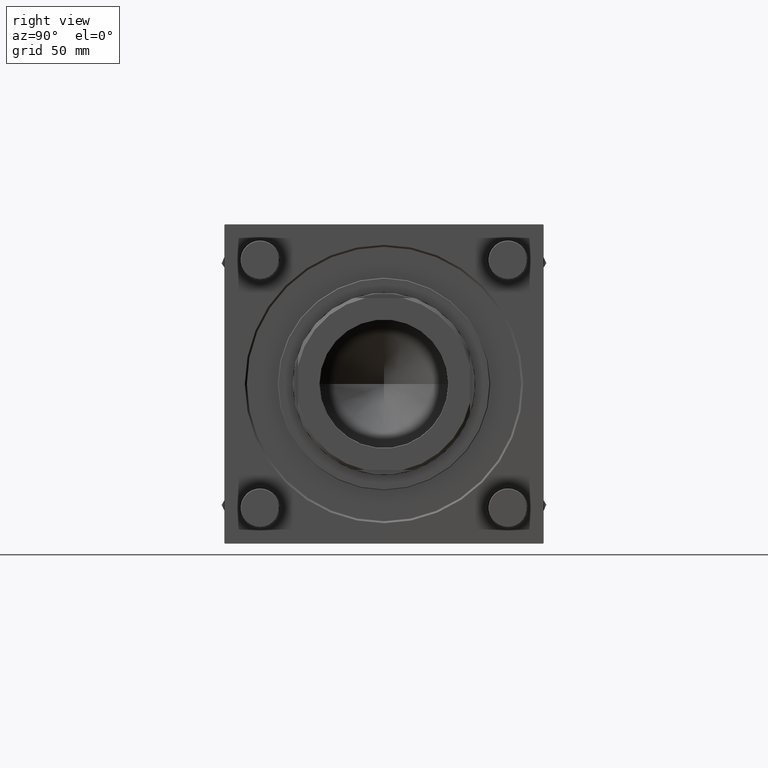
[diagram: clean part render]
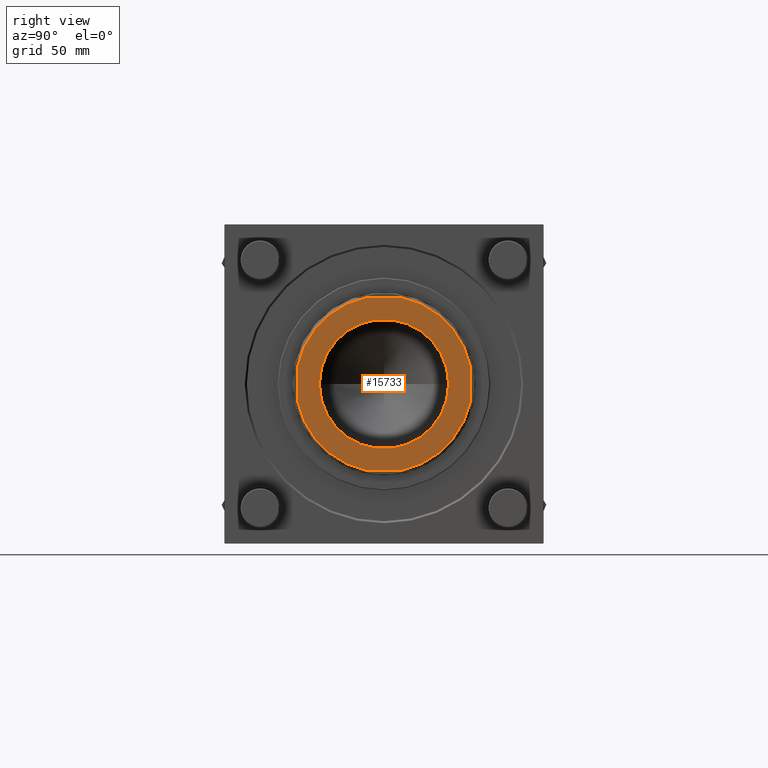
[diagram: same view with one face highlighted and labeled with its STEP entity id]
A machine part, right view. The second image highlights one B-rep face of the part: STEP entity #15733.
In plain terms, the highlighted planar face has unit normal (1, 0, 0).
Its self-contained STEP definition (entity closure, byte-faithful):
#1406 = CARTESIAN_POINT ( 'NONE',  ( 0.000000000000000000, 0.000000000000000000, 245.0000000000000000 ) ) ;
#1643 = EDGE_CURVE ( 'NONE', #6033, #25863, #43084, .T. ) ;
#2168 = CARTESIAN_POINT ( 'NONE',  ( -14.15097169808517741, 65.99999999999998579, 245.0000000000000000 ) ) ;
#3128 = CARTESIAN_POINT ( 'NONE',  ( 49.54999999999998295, 0.000000000000000000, 245.0000000000000000 ) ) ;
#3340 = AXIS2_PLACEMENT_3D ( 'NONE', #1406, #14728, #40772 ) ;
#4476 = ORIENTED_EDGE ( 'NONE', *, *, #16847, .T. ) ;
#4587 = CARTESIAN_POINT ( 'NONE',  ( -14.15097169808505306, -66.00000000000000000, 245.0000000000000000 ) ) ;
#6033 = VERTEX_POINT ( 'NONE', #18358 ) ;
#6283 = FACE_OUTER_BOUND ( 'NONE', #13500, .T. ) ;
#6727 = CARTESIAN_POINT ( 'NONE',  ( 0.000000000000000000, 0.000000000000000000, 245.0000000000000000 ) ) ;
#7028 = CARTESIAN_POINT ( 'NONE',  ( 0.000000000000000000, 0.000000000000000000, 245.0000000000000000 ) ) ;
#7443 = EDGE_CURVE ( 'NONE', #25803, #16011, #50493, .T. ) ;
#8021 = LINE ( 'NONE', #30301, #55392 ) ;
#8303 = DIRECTION ( 'NONE',  ( -1.000000000000000000, -0.000000000000000000, -0.000000000000000000 ) ) ;
#8409 = CARTESIAN_POINT ( 'NONE',  ( 66.00000000000000000, 65.99999999999998579, 245.0000000000000000 ) ) ;
#8525 = EDGE_CURVE ( 'NONE', #16930, #23760, #24472, .T. ) ;
#9854 = VECTOR ( 'NONE', #24189, 1000.000000000000000 ) ;
#10901 = PLANE ( 'NONE',  #14150 ) ;
#11536 = DIRECTION ( 'NONE',  ( 1.000000000000000000, 0.000000000000000000, 0.000000000000000000 ) ) ;
#11840 = DIRECTION ( 'NONE',  ( 1.051347561198064835E-16, -1.000000000000000000, 0.000000000000000000 ) ) ;
#13169 = AXIS2_PLACEMENT_3D ( 'NONE', #7028, #33934, #38272 ) ;
#13182 = CARTESIAN_POINT ( 'NONE',  ( 14.15097169808529642, 65.99999999999998579, 245.0000000000000000 ) ) ;
#13500 = EDGE_LOOP ( 'NONE', ( #41239, #43700, #23485, #52554, #4476, #53619, #51284, #28942 ) ) ;
#13527 = EDGE_CURVE ( 'NONE', #23760, #29480, #26122, .T. ) ;
#13588 = CARTESIAN_POINT ( 'NONE',  ( 66.00000000000001421, 14.15097169808519162, 245.0000000000000000 ) ) ;
#14017 = ORIENTED_EDGE ( 'NONE', *, *, #1643, .T. ) ;
#14115 = DIRECTION ( 'NONE',  ( 1.000000000000000000, 0.000000000000000000, 0.000000000000000000 ) ) ;
#14150 = AXIS2_PLACEMENT_3D ( 'NONE', #28276, #23946, #14958 ) ;
#14728 = DIRECTION ( 'NONE',  ( 0.000000000000000000, -0.000000000000000000, -1.000000000000000000 ) ) ;
#14958 = DIRECTION ( 'NONE',  ( 1.000000000000000000, 0.000000000000000000, 0.000000000000000000 ) ) ;
#15442 = VERTEX_POINT ( 'NONE', #36745 ) ;
#15733 = ADVANCED_FACE ( 'NONE', ( #19026, #6283 ), #10901, .T. ) ;
#16011 = VERTEX_POINT ( 'NONE', #13182 ) ;
#16847 = EDGE_CURVE ( 'NONE', #15442, #40334, #25173, .T. ) ;
#16930 = VERTEX_POINT ( 'NONE', #4587 ) ;
#18078 = CIRCLE ( 'NONE', #39344, 67.50000000000002842 ) ;
#18358 = CARTESIAN_POINT ( 'NONE',  ( -49.54999999999998295, 6.068124889775133217E-15, 245.0000000000000000 ) ) ;
#19026 = FACE_BOUND ( 'NONE', #45462, .T. ) ;
#19573 = CARTESIAN_POINT ( 'NONE',  ( -65.99999999999997158, -66.00000000000000000, 245.0000000000000000 ) ) ;
#22677 = CIRCLE ( 'NONE', #53161, 49.54999999999998295 ) ;
#23147 = EDGE_CURVE ( 'NONE', #25863, #6033, #22677, .T. ) ;
#23485 = ORIENTED_EDGE ( 'NONE', *, *, #39822, .T. ) ;
#23760 = VERTEX_POINT ( 'NONE', #54231 ) ;
#23946 = DIRECTION ( 'NONE',  ( -0.000000000000000000, 0.000000000000000000, 1.000000000000000000 ) ) ;
#24189 = DIRECTION ( 'NONE',  ( 1.000000000000000000, 0.000000000000000000, 0.000000000000000000 ) ) ;
#24380 = DIRECTION ( 'NONE',  ( -0.000000000000000000, 0.000000000000000000, 1.000000000000000000 ) ) ;
#24472 = LINE ( 'NONE', #19573, #9854 ) ;
#25173 = LINE ( 'NONE', #42812, #34536 ) ;
#25803 = VERTEX_POINT ( 'NONE', #13588 ) ;
#25863 = VERTEX_POINT ( 'NONE', #3128 ) ;
#26122 = CIRCLE ( 'NONE', #13169, 67.49999999999997158 ) ;
#28276 = CARTESIAN_POINT ( 'NONE',  ( 0.000000000000000000, 0.000000000000000000, 245.0000000000000000 ) ) ;
#28942 = ORIENTED_EDGE ( 'NONE', *, *, #13527, .T. ) ;
#29312 = EDGE_CURVE ( 'NONE', #40334, #16930, #18078, .T. ) ;
#29480 = VERTEX_POINT ( 'NONE', #53527 ) ;
#30054 = DIRECTION ( 'NONE',  ( -0.000000000000000000, 0.000000000000000000, 1.000000000000000000 ) ) ;
#30301 = CARTESIAN_POINT ( 'NONE',  ( -65.99999999999998579, 65.99999999999998579, 245.0000000000000000 ) ) ;
#30974 = DIRECTION ( 'NONE',  ( -2.102695122396129669E-16, 1.000000000000000000, -0.000000000000000000 ) ) ;
#31511 = CARTESIAN_POINT ( 'NONE',  ( 0.000000000000000000, 0.000000000000000000, 245.0000000000000000 ) ) ;
#33678 = VERTEX_POINT ( 'NONE', #2168 ) ;
#33934 = DIRECTION ( 'NONE',  ( -0.000000000000000000, 0.000000000000000000, 1.000000000000000000 ) ) ;
#34536 = VECTOR ( 'NONE', #11840, 1000.000000000000000 ) ;
#36745 = CARTESIAN_POINT ( 'NONE',  ( -65.99999999999998579, 14.15097169808517741, 245.0000000000000000 ) ) ;
#37894 = CARTESIAN_POINT ( 'NONE',  ( 0.000000000000000000, 0.000000000000000000, 245.0000000000000000 ) ) ;
#38272 = DIRECTION ( 'NONE',  ( 1.000000000000000000, 0.000000000000000000, 0.000000000000000000 ) ) ;
#39344 = AXIS2_PLACEMENT_3D ( 'NONE', #6727, #24380, #55308 ) ;
#39649 = LINE ( 'NONE', #8409, #56315 ) ;
#39822 = EDGE_CURVE ( 'NONE', #16011, #33678, #8021, .T. ) ;
#40334 = VERTEX_POINT ( 'NONE', #51589 ) ;
#40703 = EDGE_CURVE ( 'NONE', #29480, #25803, #39649, .T. ) ;
#40772 = DIRECTION ( 'NONE',  ( 1.000000000000000000, 0.000000000000000000, 0.000000000000000000 ) ) ;
#41239 = ORIENTED_EDGE ( 'NONE', *, *, #40703, .T. ) ;
#41657 = DIRECTION ( 'NONE',  ( 1.000000000000000000, 0.000000000000000000, 0.000000000000000000 ) ) ;
#42385 = AXIS2_PLACEMENT_3D ( 'NONE', #43372, #30054, #11536 ) ;
#42812 = CARTESIAN_POINT ( 'NONE',  ( -65.99999999999998579, 65.99999999999998579, 245.0000000000000000 ) ) ;
#43084 = CIRCLE ( 'NONE', #3340, 49.54999999999998295 ) ;
#43372 = CARTESIAN_POINT ( 'NONE',  ( 0.000000000000000000, 0.000000000000000000, 245.0000000000000000 ) ) ;
#43700 = ORIENTED_EDGE ( 'NONE', *, *, #7443, .T. ) ;
#45462 = EDGE_LOOP ( 'NONE', ( #48815, #14017 ) ) ;
#48815 = ORIENTED_EDGE ( 'NONE', *, *, #23147, .T. ) ;
#49137 = DIRECTION ( 'NONE',  ( -0.000000000000000000, 0.000000000000000000, 1.000000000000000000 ) ) ;
#50493 = CIRCLE ( 'NONE', #54155, 67.50000000000007105 ) ;
#51284 = ORIENTED_EDGE ( 'NONE', *, *, #8525, .T. ) ;
#51589 = CARTESIAN_POINT ( 'NONE',  ( -65.99999999999998579, -14.15097169808512412, 245.0000000000000000 ) ) ;
#52554 = ORIENTED_EDGE ( 'NONE', *, *, #57258, .T. ) ;
#53161 = AXIS2_PLACEMENT_3D ( 'NONE', #37894, #55510, #41657 ) ;
#53527 = CARTESIAN_POINT ( 'NONE',  ( 66.00000000000001421, -14.15097169808469957, 245.0000000000000000 ) ) ;
#53619 = ORIENTED_EDGE ( 'NONE', *, *, #29312, .T. ) ;
#54155 = AXIS2_PLACEMENT_3D ( 'NONE', #31511, #49137, #14115 ) ;
#54231 = CARTESIAN_POINT ( 'NONE',  ( 14.15097169808477950, -66.00000000000000000, 245.0000000000000000 ) ) ;
#55292 = CIRCLE ( 'NONE', #42385, 67.50000000000004263 ) ;
#55308 = DIRECTION ( 'NONE',  ( 1.000000000000000000, 0.000000000000000000, 0.000000000000000000 ) ) ;
#55392 = VECTOR ( 'NONE', #8303, 1000.000000000000000 ) ;
#55510 = DIRECTION ( 'NONE',  ( 0.000000000000000000, -0.000000000000000000, -1.000000000000000000 ) ) ;
#56315 = VECTOR ( 'NONE', #30974, 1000.000000000000000 ) ;
#57258 = EDGE_CURVE ( 'NONE', #33678, #15442, #55292, .T. ) ;